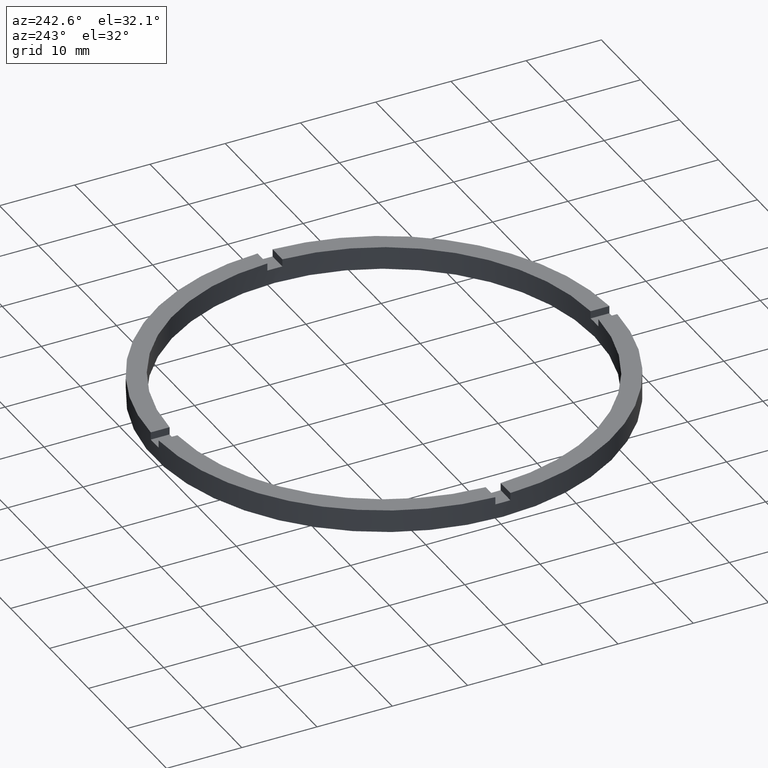
[diagram: clean part render]
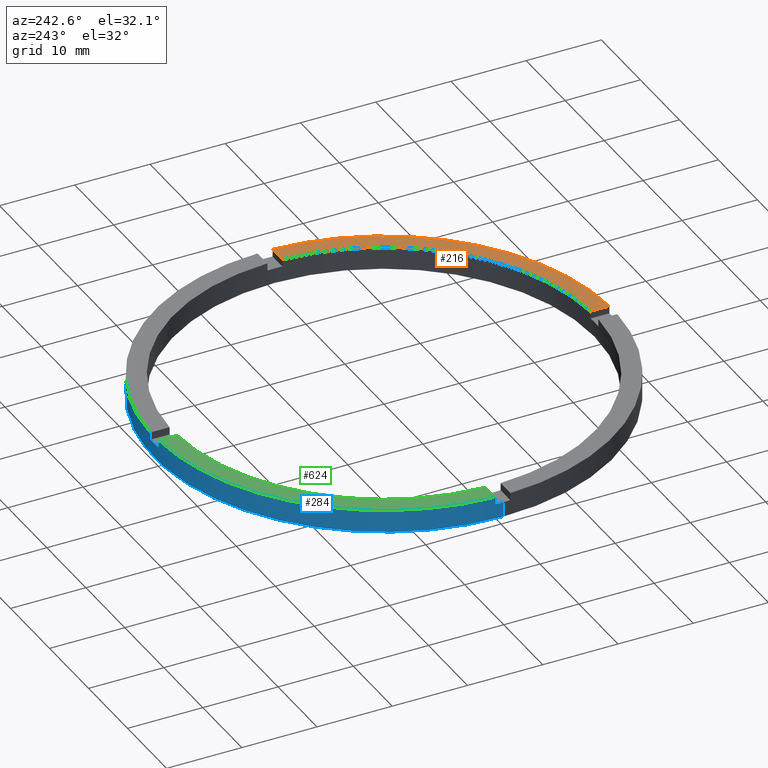
[diagram: same view with three faces highlighted in distinct colors, each labeled with its STEP entity id]
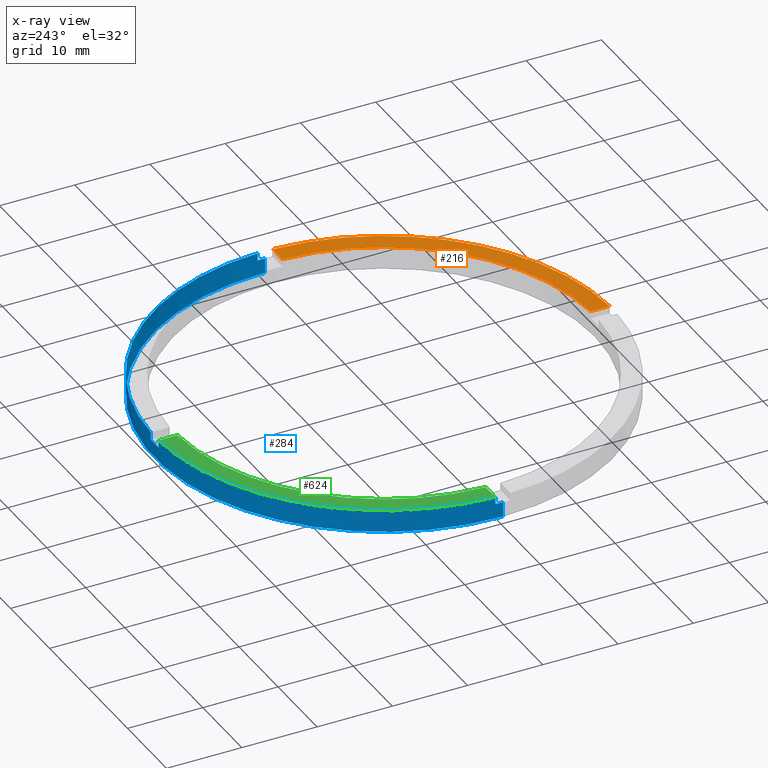
[diagram: x-ray of the same camera — body ghosted, the three highlighted faces saturated]
A machine part, auxiliary view with three faces highlighted in distinct colors.
The next image is the same camera in x-ray (body ghosted, the three faces saturated) — at least one of them is partly hidden behind the body in this view.
Their STEP definitions:

[orange] entity #216 — the highlighted planar face has unit normal (0, 0, 1).
#12 = DIRECTION ( 'NONE',  ( 0.000000000000000000, 0.000000000000000000, 1.000000000000000000 ) ) ;
#17 = VERTEX_POINT ( 'NONE', #565 ) ;
#32 = DIRECTION ( 'NONE',  ( 1.000000000000000000, 0.000000000000000000, 0.000000000000000000 ) ) ;
#48 = CIRCLE ( 'NONE', #552, 30.50000000000000000 ) ;
#56 = ORIENTED_EDGE ( 'NONE', *, *, #71, .F. ) ;
#71 = EDGE_CURVE ( 'NONE', #253, #198, #171, .T. ) ;
#124 = CARTESIAN_POINT ( 'NONE',  ( 0.000000000000000000, 0.000000000000000000, 3.000000000000000000 ) ) ;
#129 = EDGE_CURVE ( 'NONE', #198, #533, #711, .T. ) ;
#145 = CARTESIAN_POINT ( 'NONE',  ( 20.49999999999999289, -1.000000000000159428, 3.000000000000000000 ) ) ;
#162 = DIRECTION ( 'NONE',  ( 1.000000000000000000, 0.000000000000000000, 0.000000000000000000 ) ) ;
#168 = DIRECTION ( 'NONE',  ( -1.301042606982605074E-16, 1.000000000000000000, -0.000000000000000000 ) ) ;
#171 = LINE ( 'NONE', #365, #709 ) ;
#195 = FACE_OUTER_BOUND ( 'NONE', #537, .T. ) ;
#198 = VERTEX_POINT ( 'NONE', #495 ) ;
#216 = ADVANCED_FACE ( 'NONE', ( #195 ), #613, .T. ) ;
#253 = VERTEX_POINT ( 'NONE', #327 ) ;
#286 = CARTESIAN_POINT ( 'NONE',  ( 0.000000000000000000, 0.000000000000000000, 3.000000000000000000 ) ) ;
#287 = DIRECTION ( 'NONE',  ( 1.000000000000000000, 6.505213034913025371E-17, 0.000000000000000000 ) ) ;
#327 = CARTESIAN_POINT ( 'NONE',  ( 0.9999999999998384625, -30.48360214935236456, 3.000000000000000000 ) ) ;
#341 = AXIS2_PLACEMENT_3D ( 'NONE', #430, #12, #412 ) ;
#349 = LINE ( 'NONE', #145, #599 ) ;
#361 = AXIS2_PLACEMENT_3D ( 'NONE', #286, #523, #32 ) ;
#365 = CARTESIAN_POINT ( 'NONE',  ( 0.9999999999998371303, -20.50000000000017764, 3.000000000000000000 ) ) ;
#412 = DIRECTION ( 'NONE',  ( 1.000000000000000000, 0.000000000000000000, -0.000000000000000000 ) ) ;
#420 = EDGE_CURVE ( 'NONE', #253, #17, #48, .T. ) ;
#430 = CARTESIAN_POINT ( 'NONE',  ( 0.000000000000000000, 0.000000000000000000, 3.000000000000000000 ) ) ;
#446 = ORIENTED_EDGE ( 'NONE', *, *, #661, .F. ) ;
#456 = ORIENTED_EDGE ( 'NONE', *, *, #129, .F. ) ;
#495 = CARTESIAN_POINT ( 'NONE',  ( 0.9999999999998382405, -27.98213715926645051, 3.000000000000000000 ) ) ;
#523 = DIRECTION ( 'NONE',  ( 0.000000000000000000, 0.000000000000000000, 1.000000000000000000 ) ) ;
#533 = VERTEX_POINT ( 'NONE', #696 ) ;
#537 = EDGE_LOOP ( 'NONE', ( #446, #456, #56, #780 ) ) ;
#552 = AXIS2_PLACEMENT_3D ( 'NONE', #124, #665, #162 ) ;
#565 = CARTESIAN_POINT ( 'NONE',  ( 30.48360214935235390, -1.000000000000158762, 3.000000000000000000 ) ) ;
#599 = VECTOR ( 'NONE', #287, 1000.000000000000000 ) ;
#613 = PLANE ( 'NONE',  #341 ) ;
#661 = EDGE_CURVE ( 'NONE', #533, #17, #349, .T. ) ;
#665 = DIRECTION ( 'NONE',  ( 0.000000000000000000, 0.000000000000000000, 1.000000000000000000 ) ) ;
#696 = CARTESIAN_POINT ( 'NONE',  ( 27.98213715926643985, -1.000000000000158984, 3.000000000000000000 ) ) ;
#709 = VECTOR ( 'NONE', #168, 1000.000000000000000 ) ;
#711 = CIRCLE ( 'NONE', #361, 28.00000000000000000 ) ;
#780 = ORIENTED_EDGE ( 'NONE', *, *, #420, .T. ) ;

[blue] entity #284 — the highlighted cylindrical surface (partial cylindrical patch) has radius 30.5 mm, axis along (-0, -0, -1).
#2 = ORIENTED_EDGE ( 'NONE', *, *, #357, .T. ) ;
#6 = ORIENTED_EDGE ( 'NONE', *, *, #520, .T. ) ;
#7 = DIRECTION ( 'NONE',  ( 1.000000000000000000, 0.000000000000000000, 0.000000000000000000 ) ) ;
#16 = DIRECTION ( 'NONE',  ( 0.000000000000000000, -0.000000000000000000, 1.000000000000000000 ) ) ;
#20 = EDGE_CURVE ( 'NONE', #248, #194, #464, .T. ) ;
#23 = CARTESIAN_POINT ( 'NONE',  ( 30.50000000000000000, 3.735172737399427541E-15, 0.000000000000000000 ) ) ;
#34 = DIRECTION ( 'NONE',  ( 0.000000000000000000, 0.000000000000000000, 1.000000000000000000 ) ) ;
#53 = ORIENTED_EDGE ( 'NONE', *, *, #670, .T. ) ;
#55 = CARTESIAN_POINT ( 'NONE',  ( -1.000000000000024425, 30.48360214935236101, 2.000000000000000000 ) ) ;
#70 = DIRECTION ( 'NONE',  ( -0.000000000000000000, -0.000000000000000000, -1.000000000000000000 ) ) ;
#74 = CIRCLE ( 'NONE', #202, 30.50000000000000000 ) ;
#75 = VECTOR ( 'NONE', #70, 1000.000000000000000 ) ;
#82 = CARTESIAN_POINT ( 'NONE',  ( -1.000000000000024425, 30.48360214935236101, 3.000000000000000000 ) ) ;
#85 = AXIS2_PLACEMENT_3D ( 'NONE', #141, #557, #623 ) ;
#101 = EDGE_CURVE ( 'NONE', #783, #220, #455, .T. ) ;
#109 = DIRECTION ( 'NONE',  ( 1.000000000000000000, 0.000000000000000000, 0.000000000000000000 ) ) ;
#113 = CARTESIAN_POINT ( 'NONE',  ( -30.50000000000000000, 0.000000000000000000, 2.000000000000000000 ) ) ;
#134 = CARTESIAN_POINT ( 'NONE',  ( 30.48360214935236456, 0.9999999999998412381, 2.000000000000000000 ) ) ;
#135 = CARTESIAN_POINT ( 'NONE',  ( 0.000000000000000000, 0.000000000000000000, 3.000000000000000000 ) ) ;
#137 = CARTESIAN_POINT ( 'NONE',  ( 30.50000000000000000, 3.735172737399427541E-15, 2.000000000000000000 ) ) ;
#141 = CARTESIAN_POINT ( 'NONE',  ( 0.000000000000000000, 0.000000000000000000, 3.000000000000000000 ) ) ;
#160 = VERTEX_POINT ( 'NONE', #315 ) ;
#175 = LINE ( 'NONE', #388, #199 ) ;
#181 = ORIENTED_EDGE ( 'NONE', *, *, #629, .T. ) ;
#185 = ORIENTED_EDGE ( 'NONE', *, *, #101, .F. ) ;
#189 = DIRECTION ( 'NONE',  ( 0.000000000000000000, 0.000000000000000000, 1.000000000000000000 ) ) ;
#191 = DIRECTION ( 'NONE',  ( 1.000000000000000000, 0.000000000000000000, 0.000000000000000000 ) ) ;
#194 = VERTEX_POINT ( 'NONE', #134 ) ;
#196 = DIRECTION ( 'NONE',  ( 0.000000000000000000, 0.000000000000000000, 1.000000000000000000 ) ) ;
#197 = ORIENTED_EDGE ( 'NONE', *, *, #756, .F. ) ;
#199 = VECTOR ( 'NONE', #749, 1000.000000000000000 ) ;
#202 = AXIS2_PLACEMENT_3D ( 'NONE', #234, #297, #653 ) ;
#211 = CARTESIAN_POINT ( 'NONE',  ( 0.000000000000000000, 0.000000000000000000, 2.000000000000000000 ) ) ;
#214 = VECTOR ( 'NONE', #260, 1000.000000000000000 ) ;
#220 = VERTEX_POINT ( 'NONE', #667 ) ;
#227 = CARTESIAN_POINT ( 'NONE',  ( 30.50000000000000000, 3.735172737399427541E-15, 3.000000000000000000 ) ) ;
#234 = CARTESIAN_POINT ( 'NONE',  ( 0.000000000000000000, 0.000000000000000000, 0.000000000000000000 ) ) ;
#239 = EDGE_CURVE ( 'NONE', #431, #160, #714, .T. ) ;
#248 = VERTEX_POINT ( 'NONE', #137 ) ;
#260 = DIRECTION ( 'NONE',  ( -0.000000000000000000, -0.000000000000000000, -1.000000000000000000 ) ) ;
#262 = ORIENTED_EDGE ( 'NONE', *, *, #239, .F. ) ;
#266 = EDGE_CURVE ( 'NONE', #431, #492, #175, .T. ) ;
#279 = AXIS2_PLACEMENT_3D ( 'NONE', #211, #442, #109 ) ;
#284 = ADVANCED_FACE ( 'NONE', ( #463 ), #641, .T. ) ;
#288 = CARTESIAN_POINT ( 'NONE',  ( 0.000000000000000000, 0.000000000000000000, 2.000000000000000000 ) ) ;
#297 = DIRECTION ( 'NONE',  ( 0.000000000000000000, 0.000000000000000000, 1.000000000000000000 ) ) ;
#308 = CARTESIAN_POINT ( 'NONE',  ( 30.48360214935236456, 0.9999999999998412381, 3.000000000000000000 ) ) ;
#312 = EDGE_CURVE ( 'NONE', #324, #492, #378, .T. ) ;
#315 = CARTESIAN_POINT ( 'NONE',  ( -30.48360214935236101, 0.9999999999999746869, 3.000000000000000000 ) ) ;
#321 = VERTEX_POINT ( 'NONE', #393 ) ;
#324 = VERTEX_POINT ( 'NONE', #627 ) ;
#330 = LINE ( 'NONE', #308, #75 ) ;
#342 = LINE ( 'NONE', #759, #603 ) ;
#345 = CARTESIAN_POINT ( 'NONE',  ( 30.48360214935236456, 0.9999999999998412381, 3.000000000000000000 ) ) ;
#350 = VECTOR ( 'NONE', #466, 1000.000000000000000 ) ;
#357 = EDGE_CURVE ( 'NONE', #324, #781, #739, .T. ) ;
#378 = CIRCLE ( 'NONE', #614, 30.50000000000000000 ) ;
#388 = CARTESIAN_POINT ( 'NONE',  ( -1.000000000000024425, 30.48360214935236101, 3.000000000000000000 ) ) ;
#393 = CARTESIAN_POINT ( 'NONE',  ( -30.48360214935236101, 0.9999999999999746869, 2.000000000000000000 ) ) ;
#409 = AXIS2_PLACEMENT_3D ( 'NONE', #135, #196, #672 ) ;
#431 = VERTEX_POINT ( 'NONE', #82 ) ;
#432 = EDGE_CURVE ( 'NONE', #580, #781, #562, .T. ) ;
#442 = DIRECTION ( 'NONE',  ( 0.000000000000000000, 0.000000000000000000, 1.000000000000000000 ) ) ;
#450 = CARTESIAN_POINT ( 'NONE',  ( 0.9999999999999754641, 30.48360214935236101, 3.000000000000000000 ) ) ;
#455 = LINE ( 'NONE', #666, #214 ) ;
#463 = FACE_OUTER_BOUND ( 'NONE', #728, .T. ) ;
#464 = CIRCLE ( 'NONE', #483, 30.50000000000000000 ) ;
#466 = DIRECTION ( 'NONE',  ( -0.000000000000000000, -0.000000000000000000, -1.000000000000000000 ) ) ;
#479 = VECTOR ( 'NONE', #712, 1000.000000000000000 ) ;
#483 = AXIS2_PLACEMENT_3D ( 'NONE', #288, #189, #7 ) ;
#485 = CARTESIAN_POINT ( 'NONE',  ( 0.000000000000000000, 0.000000000000000000, 3.000000000000000000 ) ) ;
#487 = EDGE_CURVE ( 'NONE', #248, #730, #508, .T. ) ;
#492 = VERTEX_POINT ( 'NONE', #55 ) ;
#508 = LINE ( 'NONE', #227, #350 ) ;
#520 = EDGE_CURVE ( 'NONE', #730, #220, #74, .T. ) ;
#531 = ORIENTED_EDGE ( 'NONE', *, *, #20, .F. ) ;
#542 = CARTESIAN_POINT ( 'NONE',  ( 0.9999999999999754641, 30.48360214935236101, 3.000000000000000000 ) ) ;
#546 = DIRECTION ( 'NONE',  ( 1.000000000000000000, 0.000000000000000000, 0.000000000000000000 ) ) ;
#550 = CARTESIAN_POINT ( 'NONE',  ( 0.000000000000000000, 0.000000000000000000, 2.000000000000000000 ) ) ;
#557 = DIRECTION ( 'NONE',  ( -0.000000000000000000, -0.000000000000000000, -1.000000000000000000 ) ) ;
#562 = CIRCLE ( 'NONE', #409, 30.50000000000000000 ) ;
#573 = ORIENTED_EDGE ( 'NONE', *, *, #312, .F. ) ;
#580 = VERTEX_POINT ( 'NONE', #345 ) ;
#583 = ORIENTED_EDGE ( 'NONE', *, *, #487, .T. ) ;
#603 = VECTOR ( 'NONE', #34, 1000.000000000000000 ) ;
#606 = AXIS2_PLACEMENT_3D ( 'NONE', #485, #674, #546 ) ;
#614 = AXIS2_PLACEMENT_3D ( 'NONE', #550, #16, #191 ) ;
#616 = CIRCLE ( 'NONE', #279, 30.50000000000000000 ) ;
#623 = DIRECTION ( 'NONE',  ( -1.000000000000000000, 0.000000000000000000, 0.000000000000000000 ) ) ;
#627 = CARTESIAN_POINT ( 'NONE',  ( 0.9999999999999754641, 30.48360214935236101, 2.000000000000000000 ) ) ;
#629 = EDGE_CURVE ( 'NONE', #580, #194, #330, .T. ) ;
#641 = CYLINDRICAL_SURFACE ( 'NONE', #85, 30.50000000000000000 ) ;
#653 = DIRECTION ( 'NONE',  ( 1.000000000000000000, 0.000000000000000000, 0.000000000000000000 ) ) ;
#666 = CARTESIAN_POINT ( 'NONE',  ( -30.50000000000000000, 0.000000000000000000, 3.000000000000000000 ) ) ;
#667 = CARTESIAN_POINT ( 'NONE',  ( -30.50000000000000000, 0.000000000000000000, 0.000000000000000000 ) ) ;
#670 = EDGE_CURVE ( 'NONE', #321, #160, #342, .T. ) ;
#672 = DIRECTION ( 'NONE',  ( 1.000000000000000000, 0.000000000000000000, 0.000000000000000000 ) ) ;
#674 = DIRECTION ( 'NONE',  ( 0.000000000000000000, 0.000000000000000000, 1.000000000000000000 ) ) ;
#675 = ORIENTED_EDGE ( 'NONE', *, *, #432, .F. ) ;
#712 = DIRECTION ( 'NONE',  ( 0.000000000000000000, 0.000000000000000000, 1.000000000000000000 ) ) ;
#714 = CIRCLE ( 'NONE', #606, 30.50000000000000000 ) ;
#717 = ORIENTED_EDGE ( 'NONE', *, *, #266, .T. ) ;
#728 = EDGE_LOOP ( 'NONE', ( #531, #583, #6, #185, #197, #53, #262, #717, #573, #2, #675, #181 ) ) ;
#730 = VERTEX_POINT ( 'NONE', #23 ) ;
#739 = LINE ( 'NONE', #542, #479 ) ;
#749 = DIRECTION ( 'NONE',  ( -0.000000000000000000, -0.000000000000000000, -1.000000000000000000 ) ) ;
#756 = EDGE_CURVE ( 'NONE', #321, #783, #616, .T. ) ;
#759 = CARTESIAN_POINT ( 'NONE',  ( -30.48360214935236101, 0.9999999999999746869, 3.000000000000000000 ) ) ;
#781 = VERTEX_POINT ( 'NONE', #450 ) ;
#783 = VERTEX_POINT ( 'NONE', #113 ) ;

[green] entity #624 — the highlighted planar face has unit normal (0, 0, 1).
#52 = EDGE_CURVE ( 'NONE', #431, #582, #219, .T. ) ;
#67 = ORIENTED_EDGE ( 'NONE', *, *, #163, .F. ) ;
#82 = CARTESIAN_POINT ( 'NONE',  ( -1.000000000000024425, 30.48360214935236101, 3.000000000000000000 ) ) ;
#84 = DIRECTION ( 'NONE',  ( -0.000000000000000000, -1.000000000000000000, -0.000000000000000000 ) ) ;
#97 = CIRCLE ( 'NONE', #369, 28.00000000000000000 ) ;
#105 = AXIS2_PLACEMENT_3D ( 'NONE', #413, #250, #543 ) ;
#122 = CARTESIAN_POINT ( 'NONE',  ( -1.000000000000024425, 27.98213715926644340, 3.000000000000000000 ) ) ;
#133 = CARTESIAN_POINT ( 'NONE',  ( -20.50000000000018119, 0.9999999999999765743, 3.000000000000000000 ) ) ;
#160 = VERTEX_POINT ( 'NONE', #315 ) ;
#163 = EDGE_CURVE ( 'NONE', #322, #160, #448, .T. ) ;
#167 = VECTOR ( 'NONE', #740, 1000.000000000000000 ) ;
#219 = LINE ( 'NONE', #437, #221 ) ;
#221 = VECTOR ( 'NONE', #84, 1000.000000000000000 ) ;
#239 = EDGE_CURVE ( 'NONE', #431, #160, #714, .T. ) ;
#250 = DIRECTION ( 'NONE',  ( 0.000000000000000000, 0.000000000000000000, 1.000000000000000000 ) ) ;
#283 = DIRECTION ( 'NONE',  ( 1.000000000000000000, 0.000000000000000000, 0.000000000000000000 ) ) ;
#315 = CARTESIAN_POINT ( 'NONE',  ( -30.48360214935236101, 0.9999999999999746869, 3.000000000000000000 ) ) ;
#322 = VERTEX_POINT ( 'NONE', #511 ) ;
#369 = AXIS2_PLACEMENT_3D ( 'NONE', #397, #585, #283 ) ;
#397 = CARTESIAN_POINT ( 'NONE',  ( 0.000000000000000000, 0.000000000000000000, 3.000000000000000000 ) ) ;
#413 = CARTESIAN_POINT ( 'NONE',  ( 0.000000000000000000, 0.000000000000000000, 3.000000000000000000 ) ) ;
#431 = VERTEX_POINT ( 'NONE', #82 ) ;
#437 = CARTESIAN_POINT ( 'NONE',  ( -1.000000000000024425, 20.49999999999999645, 3.000000000000000000 ) ) ;
#448 = LINE ( 'NONE', #133, #167 ) ;
#485 = CARTESIAN_POINT ( 'NONE',  ( 0.000000000000000000, 0.000000000000000000, 3.000000000000000000 ) ) ;
#486 = PLANE ( 'NONE',  #105 ) ;
#511 = CARTESIAN_POINT ( 'NONE',  ( -27.98213715926644696, 0.9999999999999751310, 3.000000000000000000 ) ) ;
#512 = ORIENTED_EDGE ( 'NONE', *, *, #239, .T. ) ;
#521 = EDGE_LOOP ( 'NONE', ( #581, #512, #67, #777 ) ) ;
#543 = DIRECTION ( 'NONE',  ( 1.000000000000000000, 0.000000000000000000, -0.000000000000000000 ) ) ;
#546 = DIRECTION ( 'NONE',  ( 1.000000000000000000, 0.000000000000000000, 0.000000000000000000 ) ) ;
#581 = ORIENTED_EDGE ( 'NONE', *, *, #52, .F. ) ;
#582 = VERTEX_POINT ( 'NONE', #122 ) ;
#585 = DIRECTION ( 'NONE',  ( 0.000000000000000000, 0.000000000000000000, 1.000000000000000000 ) ) ;
#601 = FACE_OUTER_BOUND ( 'NONE', #521, .T. ) ;
#606 = AXIS2_PLACEMENT_3D ( 'NONE', #485, #674, #546 ) ;
#624 = ADVANCED_FACE ( 'NONE', ( #601 ), #486, .T. ) ;
#674 = DIRECTION ( 'NONE',  ( 0.000000000000000000, 0.000000000000000000, 1.000000000000000000 ) ) ;
#714 = CIRCLE ( 'NONE', #606, 30.50000000000000000 ) ;
#740 = DIRECTION ( 'NONE',  ( -1.000000000000000000, -1.951563910473907735E-16, 0.000000000000000000 ) ) ;
#747 = EDGE_CURVE ( 'NONE', #582, #322, #97, .T. ) ;
#777 = ORIENTED_EDGE ( 'NONE', *, *, #747, .F. ) ;